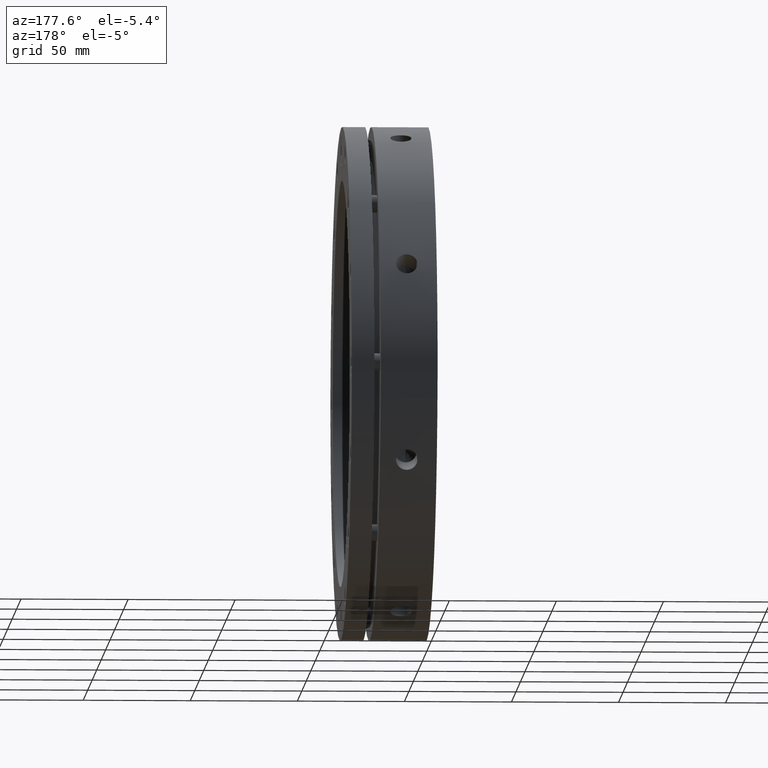
[diagram: clean part render]
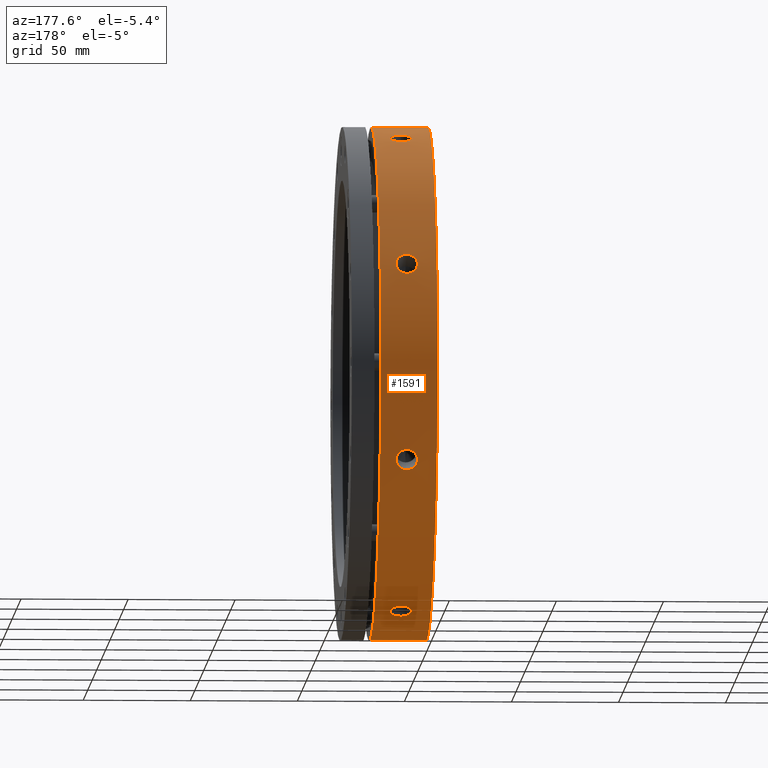
[diagram: same view with one face highlighted and labeled with its STEP entity id]
A machine part, auxiliary view. The second image highlights one B-rep face of the part: STEP entity #1591.
In plain terms, the highlighted cylindrical surface (partial cylindrical patch) has radius 120 mm, axis along (1, 0, 0).
Its self-contained STEP definition (entity closure, byte-faithful):
#111 = EDGE_CURVE ( 'NONE', #2242, #2240, #253, .T. ) ;
#112 = EDGE_CURVE ( 'NONE', #2250, #2245, #249, .T. ) ;
#113 = EDGE_CURVE ( 'NONE', #2240, #2242, #244, .T. ) ;
#114 = EDGE_CURVE ( 'NONE', #2241, #2243, #3080, .T. ) ;
#115 = EDGE_CURVE ( 'NONE', #2254, #2255, #257, .T. ) ;
#116 = EDGE_CURVE ( 'NONE', #2257, #2248, #255, .T. ) ;
#117 = EDGE_CURVE ( 'NONE', #2248, #2257, #247, .T. ) ;
#118 = EDGE_CURVE ( 'NONE', #2245, #2250, #260, .T. ) ;
#119 = EDGE_CURVE ( 'NONE', #2255, #2254, #261, .T. ) ;
#120 = EDGE_CURVE ( 'NONE', #2243, #2244, #3081, .T. ) ;
#121 = EDGE_CURVE ( 'NONE', #2244, #2249, #3078, .T. ) ;
#122 = EDGE_CURVE ( 'NONE', #2241, #2249, #3083, .T. ) ;
#244 = B_SPLINE_CURVE_WITH_KNOTS ( 'NONE', 3,
 ( #928, #853, #929, #930, #931, #932, #933, #934, #935, #936, #937, #938, #939, #940, #941, #942, #943, #944, #945, #946, #947, #948, #949, #950, #951, #952, #953, #954, #955, #956, #957, #958, #959, #960, #961, #962, #963, #964 ),
 .UNSPECIFIED., .F., .F.,
 ( 4, 2, 2, 2, 2, 2, 2, 2, 2, 2, 2, 2, 2, 2, 2, 2, 2, 2, 4 ),
 ( 0.02344949051190831100, 0.02442641090428118700, 0.02540333129665406700, 0.02638025168902694700, 0.02735717208139982300, 0.02833409247377270000, 0.02882255266995913500, 0.02931101286614556600, 0.03028793325851844900, 0.03126485365089133600, 0.03224177404326421900, 0.03273023423945065800, 0.03321869443563709600, 0.03419561482800996500, 0.03517253522038282800, 0.03614945561275569700, 0.03712637600512856000, 0.03810329639750142900, 0.03908021678987429200 ),
 .UNSPECIFIED. ) ;
#247 = B_SPLINE_CURVE_WITH_KNOTS ( 'NONE', 3,
 ( #1045, #927, #1047, #1048, #1049, #1050, #1051, #1052, #1053, #1054, #1055, #1056, #1057, #1058, #1059, #1060, #1061, #1062, #1063, #1064, #1065, #1066, #1067, #1068, #1069, #1070, #1071, #1072, #1073, #1074, #1075, #1076, #1077, #1078, #1079, #1080, #1081, #1082 ),
 .UNSPECIFIED., .F., .F.,
 ( 4, 2, 2, 2, 2, 2, 2, 2, 2, 2, 2, 2, 2, 2, 2, 2, 2, 2, 4 ),
 ( 0.02344949051190828300, 0.02442641090428112800, 0.02540333129665397300, 0.02638025168902682200, 0.02735717208139966700, 0.02833409247377251200, 0.02882255266995894400, 0.02931101286614537200, 0.03028793325851824800, 0.03126485365089112800, 0.03224177404326400400, 0.03273023423945044300, 0.03321869443563688100, 0.03419561482800977100, 0.03517253522038266100, 0.03614945561275555900, 0.03712637600512844900, 0.03810329639750134600, 0.03908021678987423600 ),
 .UNSPECIFIED. ) ;
#249 = B_SPLINE_CURVE_WITH_KNOTS ( 'NONE', 3,
 ( #891, #890, #843, #892, #893, #894, #895, #896, #897, #898, #899, #900, #901, #902, #903, #904, #905, #906, #907, #908, #909, #910, #911, #912, #913, #914, #915, #916, #917, #918, #919, #920, #921, #922, #923, #924, #925, #926 ),
 .UNSPECIFIED., .F., .F.,
 ( 4, 2, 2, 2, 2, 2, 2, 2, 2, 2, 2, 2, 2, 2, 2, 2, 2, 2, 4 ),
 ( 0.02344949051190825900, 0.02442641090428108700, 0.02540333129665391100, 0.02638025168902673900, 0.02735717208139956300, 0.02833409247377239100, 0.02882255266995881900, 0.02931101286614524300, 0.03028793325851812700, 0.03126485365089101700, 0.03224177404326390000, 0.03273023423945035900, 0.03321869443563681800, 0.03419561482800972200, 0.03517253522038262000, 0.03614945561275552400, 0.03712637600512842100, 0.03810329639750132500, 0.03908021678987422300 ),
 .UNSPECIFIED. ) ;
#253 = B_SPLINE_CURVE_WITH_KNOTS ( 'NONE', 3,
 ( #854, #851, #847, #855, #856, #857, #858, #859, #860, #861, #862, #863, #864, #865, #866, #867, #868, #869, #870, #871, #872, #873, #874, #875, #876, #877, #878, #879, #880, #881, #882, #883, #884, #885, #886, #887, #888, #889 ),
 .UNSPECIFIED., .F., .F.,
 ( 4, 2, 2, 2, 2, 2, 2, 2, 2, 2, 2, 2, 2, 2, 2, 2, 2, 2, 4 ),
 ( 0.007818764230698502600, 0.008795684623274121300, 0.009772605015849740100, 0.01074952540842535900, 0.01172644580100097900, 0.01270336619357659800, 0.01319182638986441200, 0.01368028658615222900, 0.01465720697872783700, 0.01563412737130344700, 0.01661104776387905800, 0.01709950796016685600, 0.01758796815645465400, 0.01856488854903026000, 0.01954180894160587000, 0.02051872933418148400, 0.02149564972675709400, 0.02247257011933270400, 0.02344949051190831100 ),
 .UNSPECIFIED. ) ;
#255 = B_SPLINE_CURVE_WITH_KNOTS ( 'NONE', 3,
 ( #1008, #1007, #967, #1009, #1010, #1011, #1012, #1013, #1014, #1015, #1016, #1017, #1018, #1019, #1020, #1021, #1022, #1023, #1024, #1025, #1026, #1027, #1028, #1029, #1030, #1031, #1032, #1033, #1034, #1035, #1036, #1037, #1038, #1039, #1040, #1041, #1042, #1043 ),
 .UNSPECIFIED., .F., .F.,
 ( 4, 2, 2, 2, 2, 2, 2, 2, 2, 2, 2, 2, 2, 2, 2, 2, 2, 2, 4 ),
 ( 0.007818764230698497400, 0.008795684623274104000, 0.009772605015849710600, 0.01074952540842531700, 0.01172644580100092400, 0.01270336619357653000, 0.01319182638986432900, 0.01368028658615212700, 0.01465720697872771600, 0.01563412737130330500, 0.01661104776387889800, 0.01709950796016670300, 0.01758796815645450800, 0.01856488854903013500, 0.01954180894160576600, 0.02051872933418139400, 0.02149564972675702100, 0.02247257011933265200, 0.02344949051190828300 ),
 .UNSPECIFIED. ) ;
#257 = B_SPLINE_CURVE_WITH_KNOTS ( 'NONE', 3,
 ( #971, #966, #965, #972, #973, #974, #975, #976, #977, #978, #979, #980, #981, #982, #983, #984, #985, #986, #987, #988, #989, #990, #991, #992, #993, #994, #995, #996, #997, #998, #999, #1000, #1001, #1002, #1003, #1004, #1005, #1006 ),
 .UNSPECIFIED., .F., .F.,
 ( 4, 2, 2, 2, 2, 2, 2, 2, 2, 2, 2, 2, 2, 2, 2, 2, 2, 2, 4 ),
 ( 0.007818764230698502600, 0.008795684623274104000, 0.009772605015849703700, 0.01074952540842530500, 0.01172644580100090600, 0.01270336619357650600, 0.01319182638986431500, 0.01368028658615212300, 0.01465720697872772300, 0.01563412737130332600, 0.01661104776387892200, 0.01709950796016672400, 0.01758796815645452500, 0.01856488854903015600, 0.01954180894160578000, 0.02051872933418141100, 0.02149564972675703900, 0.02247257011933266900, 0.02344949051190829700 ),
 .UNSPECIFIED. ) ;
#260 = B_SPLINE_CURVE_WITH_KNOTS ( 'NONE', 3,
 ( #1044, #1046, #1085, #1086, #1087, #1088, #1089, #1090, #1091, #1092, #1093, #1094, #1095, #1096, #1097, #1098, #1099, #1100, #1101, #1102, #1103, #1104, #1105, #1106, #1107, #1108, #1109, #1110, #1111, #1112, #1113, #1114, #1115, #1116, #1117, #1118, #1119, #1120 ),
 .UNSPECIFIED., .F., .F.,
 ( 4, 2, 2, 2, 2, 2, 2, 2, 2, 2, 2, 2, 2, 2, 2, 2, 2, 2, 4 ),
 ( 0.007818764230698476600, 0.008795684623274083200, 0.009772605015849689800, 0.01074952540842529600, 0.01172644580100090300, 0.01270336619357650800, 0.01319182638986431100, 0.01368028658615211600, 0.01465720697872772300, 0.01563412737130333300, 0.01661104776387894000, 0.01709950796016674500, 0.01758796815645454600, 0.01856488854903016700, 0.01954180894160578700, 0.02051872933418140400, 0.02149564972675702100, 0.02247257011933264200, 0.02344949051190825900 ),
 .UNSPECIFIED. ) ;
#261 = B_SPLINE_CURVE_WITH_KNOTS ( 'NONE', 3,
 ( #1084, #1083, #1123, #1124, #1125, #1126, #1127, #1128, #1129, #1130, #1131, #1132, #1133, #1134, #1135, #1136, #1137, #1138, #1139, #1140, #1141, #1142, #1143, #1144, #1145, #1146, #1147, #1148, #1149, #1150, #1151, #1152, #1153, #1154, #1155, #1156, #1157, #1158 ),
 .UNSPECIFIED., .F., .F.,
 ( 4, 2, 2, 2, 2, 2, 2, 2, 2, 2, 2, 2, 2, 2, 2, 2, 2, 2, 4 ),
 ( 0.02344949051190830000, 0.02442641090428121500, 0.02540333129665412600, 0.02638025168902704100, 0.02735717208139995500, 0.02833409247377286600, 0.02882255266995930800, 0.02931101286614575000, 0.03028793325851864000, 0.03126485365089153000, 0.03224177404326441400, 0.03273023423945084500, 0.03321869443563726900, 0.03419561482801010400, 0.03517253522038293900, 0.03614945561275577400, 0.03712637600512860800, 0.03810329639750143600, 0.03908021678987427100 ),
 .UNSPECIFIED. ) ;
#273 = EDGE_LOOP ( 'NONE', ( #431, #432 ) ) ;
#278 = EDGE_LOOP ( 'NONE', ( #435, #436, #437, #438 ) ) ;
#287 = EDGE_LOOP ( 'NONE', ( #427, #428 ) ) ;
#300 = EDGE_LOOP ( 'NONE', ( #433, #434 ) ) ;
#304 = EDGE_LOOP ( 'NONE', ( #429, #430 ) ) ;
#427 = ORIENTED_EDGE ( 'NONE', *, *, #112, .T. ) ;
#428 = ORIENTED_EDGE ( 'NONE', *, *, #118, .T. ) ;
#429 = ORIENTED_EDGE ( 'NONE', *, *, #113, .T. ) ;
#430 = ORIENTED_EDGE ( 'NONE', *, *, #111, .T. ) ;
#431 = ORIENTED_EDGE ( 'NONE', *, *, #119, .T. ) ;
#432 = ORIENTED_EDGE ( 'NONE', *, *, #115, .T. ) ;
#433 = ORIENTED_EDGE ( 'NONE', *, *, #117, .T. ) ;
#434 = ORIENTED_EDGE ( 'NONE', *, *, #116, .T. ) ;
#435 = ORIENTED_EDGE ( 'NONE', *, *, #114, .T. ) ;
#436 = ORIENTED_EDGE ( 'NONE', *, *, #120, .T. ) ;
#437 = ORIENTED_EDGE ( 'NONE', *, *, #121, .T. ) ;
#438 = ORIENTED_EDGE ( 'NONE', *, *, #122, .F. ) ;
#843 = CARTESIAN_POINT ( 'NONE',  ( 13.34269600044797200, 41.29340222208358600, 112.6714650066890600 ) ) ;
#847 = CARTESIAN_POINT ( 'NONE',  ( 14.65730431387915900, 112.6714649958652800, 41.29340225170988500 ) ) ;
#851 = CARTESIAN_POINT ( 'NONE',  ( 14.32609565464447200, 112.6826818058516200, 41.26273404709378700 ) ) ;
#853 = CARTESIAN_POINT ( 'NONE',  ( 13.67390450084658800, 108.8558474822007300, 50.50152937220665500 ) ) ;
#854 = CARTESIAN_POINT ( 'NONE',  ( 13.99999999999997300, 112.6826818058516300, 41.26273404709378700 ) ) ;
#855 = CARTESIAN_POINT ( 'NONE',  ( 15.29844171405469100, 112.6273662857551000, 41.41352988300263100 ) ) ;
#856 = CARTESIAN_POINT ( 'NONE',  ( 15.61006213290475800, 112.5947301807598400, 41.50231869707901900 ) ) ;
#857 = CARTESIAN_POINT ( 'NONE',  ( 16.21530377150665500, 112.5077540810513500, 41.73752500268434300 ) ) ;
#858 = CARTESIAN_POINT ( 'NONE',  ( 16.50798178566858400, 112.4532019499944800, 41.88448622191803100 ) ) ;
#859 = CARTESIAN_POINT ( 'NONE',  ( 17.04960693359607400, 112.3262343275274300, 42.22380722622813200 ) ) ;
#860 = CARTESIAN_POINT ( 'NONE',  ( 17.30205413072294400, 112.2533898219299700, 42.41734279239878400 ) ) ;
#861 = CARTESIAN_POINT ( 'NONE',  ( 17.76877133817776100, 112.0875062743902100, 42.85376801718348400 ) ) ;
#862 = CARTESIAN_POINT ( 'NONE',  ( 17.97587599210442000, 111.9969576133062900, 43.09007808720873800 ) ) ;
#863 = CARTESIAN_POINT ( 'NONE',  ( 18.24734321810848000, 111.8502312926801200, 43.46888652615312100 ) ) ;
#864 = CARTESIAN_POINT ( 'NONE',  ( 18.33133848670364700, 111.7994623559722100, 43.59932492883895300 ) ) ;
#865 = CARTESIAN_POINT ( 'NONE',  ( 18.48606234264885000, 111.6940427992380600, 43.86868724382902200 ) ) ;
#866 = CARTESIAN_POINT ( 'NONE',  ( 18.55697540477384100, 111.6391573895304500, 44.00819792984384500 ) ) ;
#867 = CARTESIAN_POINT ( 'NONE',  ( 18.74511210979243700, 111.4719594923816300, 44.43077804445380300 ) ) ;
#868 = CARTESIAN_POINT ( 'NONE',  ( 18.83958430933453000, 111.3562191250939700, 44.72018636680705600 ) ) ;
#869 = CARTESIAN_POINT ( 'NONE',  ( 18.96733172664240600, 111.1158858628532200, 45.31404324744465100 ) ) ;
#870 = CARTESIAN_POINT ( 'NONE',  ( 19.00022695098485300, 110.9906284014734600, 45.62005589765411200 ) ) ;
#871 = CARTESIAN_POINT ( 'NONE',  ( 18.99977066345735500, 110.7378159902724900, 46.23034936882483900 ) ) ;
#872 = CARTESIAN_POINT ( 'NONE',  ( 18.96713995119309700, 110.6122652328777900, 46.52987047539462400 ) ) ;
#873 = CARTESIAN_POINT ( 'NONE',  ( 18.87156380455883200, 110.4252744694038600, 46.97110042311333400 ) ) ;
#874 = CARTESIAN_POINT ( 'NONE',  ( 18.83187565630523600, 110.3631703696181700, 47.11682596673490100 ) ) ;
#875 = CARTESIAN_POINT ( 'NONE',  ( 18.73648068222775000, 110.2394679704708700, 47.40553095157228100 ) ) ;
#876 = CARTESIAN_POINT ( 'NONE',  ( 18.68051533151468700, 110.1777101082807800, 47.54887059754470600 ) ) ;
#877 = CARTESIAN_POINT ( 'NONE',  ( 18.49201824443033000, 109.9972992757437700, 47.96546415149243400 ) ) ;
#878 = CARTESIAN_POINT ( 'NONE',  ( 18.33827494710486100, 109.8821580562655700, 48.22846832357040400 ) ) ;
#879 = CARTESIAN_POINT ( 'NONE',  ( 17.97511089488577300, 109.6626453880218400, 48.72553768241802200 ) ) ;
#880 = CARTESIAN_POINT ( 'NONE',  ( 17.76380750032339200, 109.5578701330107000, 48.96045581914162900 ) ) ;
#881 = CARTESIAN_POINT ( 'NONE',  ( 17.30231119133021500, 109.3689514753463400, 49.38102464796666900 ) ) ;
#882 = CARTESIAN_POINT ( 'NONE',  ( 17.05051108416195400, 109.2835694002731500, 49.56949505848490400 ) ) ;
#883 = CARTESIAN_POINT ( 'NONE',  ( 16.50376024876696600, 109.1321196117432100, 49.90204254602867500 ) ) ;
#884 = CARTESIAN_POINT ( 'NONE',  ( 16.21276316240980000, 109.0674184154071200, 50.04311905064766800 ) ) ;
#885 = CARTESIAN_POINT ( 'NONE',  ( 15.61105113690859400, 108.9632639721163200, 50.26949998420192100 ) ) ;
#886 = CARTESIAN_POINT ( 'NONE',  ( 15.29589417049166900, 108.9230157433184600, 50.35653630393775200 ) ) ;
#887 = CARTESIAN_POINT ( 'NONE',  ( 14.65051137473856700, 108.8691669336712900, 50.47285011090031800 ) ) ;
#888 = CARTESIAN_POINT ( 'NONE',  ( 14.32609549922103300, 108.8558474822007400, 50.50152937220665500 ) ) ;
#889 = CARTESIAN_POINT ( 'NONE',  ( 13.99999999999997300, 108.8558474822007300, 50.50152937220664700 ) ) ;
#890 = CARTESIAN_POINT ( 'NONE',  ( 13.67390450084658600, 41.26273404709379400, 112.6826818058516200 ) ) ;
#891 = CARTESIAN_POINT ( 'NONE',  ( 13.99999999999997300, 41.26273404709379400, 112.6826818058516300 ) ) ;
#892 = CARTESIAN_POINT ( 'NONE',  ( 12.70155888875236100, 41.41352974078882500, 112.6273663380136600 ) ) ;
#893 = CARTESIAN_POINT ( 'NONE',  ( 12.38993860591399000, 41.50231847217801100, 112.5947302635255800 ) ) ;
#894 = CARTESIAN_POINT ( 'NONE',  ( 11.78469722124674700, 41.73752455466963300, 112.5077542471207300 ) ) ;
#895 = CARTESIAN_POINT ( 'NONE',  ( 11.49201930043951800, 41.88448564370444400, 112.4532021650982900 ) ) ;
#896 = CARTESIAN_POINT ( 'NONE',  ( 10.95039430464788100, 42.22380634826623700, 112.3262346572975300 ) ) ;
#897 = CARTESIAN_POINT ( 'NONE',  ( 10.69794716680119300, 42.41734174291347200, 112.2533902180554400 ) ) ;
#898 = CARTESIAN_POINT ( 'NONE',  ( 10.23123003481707400, 42.85376656947902100, 112.0875068274369700 ) ) ;
#899 = CARTESIAN_POINT ( 'NONE',  ( 10.02412534019171500, 43.09007648107846900, 111.9969582307311000 ) ) ;
#900 = CARTESIAN_POINT ( 'NONE',  ( 9.752658057386321700, 43.46888461982908300, 111.8502320334129500 ) ) ;
#901 = CARTESIAN_POINT ( 'NONE',  ( 9.668662763477108500, 43.59932291843123400, 111.7994631398342700 ) ) ;
#902 = CARTESIAN_POINT ( 'NONE',  ( 9.513938841794720600, 43.86868501574580400, 111.6940436741820500 ) ) ;
#903 = CARTESIAN_POINT ( 'NONE',  ( 9.443025731236053500, 44.00819560125948700, 111.6391583073270900 ) ) ;
#904 = CARTESIAN_POINT ( 'NONE',  ( 9.254888847699589900, 44.43077544771394100, 111.4719605268672400 ) ) ;
#905 = CARTESIAN_POINT ( 'NONE',  ( 9.160416506036181500, 44.72018358585437200, 111.3562202413060800 ) ) ;
#906 = CARTESIAN_POINT ( 'NONE',  ( 9.032668737169784000, 45.31404008189480200, 111.1158871531844000 ) ) ;
#907 = CARTESIAN_POINT ( 'NONE',  ( 8.999773295741727400, 45.62005221999550000, 110.9906299136822600 ) ) ;
#908 = CARTESIAN_POINT ( 'NONE',  ( 9.000229084601675900, 46.23034606845782700, 110.7378173686917500 ) ) ;
#909 = CARTESIAN_POINT ( 'NONE',  ( 9.032859590381439900, 46.52986735622857900, 110.6122665455206100 ) ) ;
#910 = CARTESIAN_POINT ( 'NONE',  ( 9.128435468449582800, 46.97109756834532800, 110.4252756838594700 ) ) ;
#911 = CARTESIAN_POINT ( 'NONE',  ( 9.168123534204912800, 47.11682319883920700, 110.3631715514332700 ) ) ;
#912 = CARTESIAN_POINT ( 'NONE',  ( 9.263518354819256100, 47.40552835531102700, 110.2394690870541500 ) ) ;
#913 = CARTESIAN_POINT ( 'NONE',  ( 9.319483641961976900, 47.54886810725793800, 110.1777111831626300 ) ) ;
#914 = CARTESIAN_POINT ( 'NONE',  ( 9.507980575737303000, 47.96546198714089100, 109.9973002201753900 ) ) ;
#915 = CARTESIAN_POINT ( 'NONE',  ( 9.661723802678416500, 48.22846635950260500, 109.8821589188194700 ) ) ;
#916 = CARTESIAN_POINT ( 'NONE',  ( 10.02488776009687200, 48.72553609433924000, 109.6626460941446600 ) ) ;
#917 = CARTESIAN_POINT ( 'NONE',  ( 10.23619115158910900, 48.96045443282596900, 109.5578707529653600 ) ) ;
#918 = CARTESIAN_POINT ( 'NONE',  ( 10.69768751840985900, 49.38102362991412500, 109.3689519354288700 ) ) ;
#919 = CARTESIAN_POINT ( 'NONE',  ( 10.94948767571860900, 49.56949420226752800, 109.2835697889036800 ) ) ;
#920 = CARTESIAN_POINT ( 'NONE',  ( 11.49623864704538100, 49.90204197637969200, 109.1321198724850900 ) ) ;
#921 = CARTESIAN_POINT ( 'NONE',  ( 11.78723585736000200, 50.04311862208278700, 109.0674186121762800 ) ) ;
#922 = CARTESIAN_POINT ( 'NONE',  ( 12.38894812334508300, 50.26949976566331900, 108.9632640730696700 ) ) ;
#923 = CARTESIAN_POINT ( 'NONE',  ( 12.70410521623136400, 50.35653616474557000, 108.9230158077052000 ) ) ;
#924 = CARTESIAN_POINT ( 'NONE',  ( 13.34948831613424500, 50.47285008385264900, 108.8691669462472500 ) ) ;
#925 = CARTESIAN_POINT ( 'NONE',  ( 13.67390434542315000, 50.50152937220665500, 108.8558474822007300 ) ) ;
#926 = CARTESIAN_POINT ( 'NONE',  ( 13.99999999999997300, 50.50152937220665500, 108.8558474822007300 ) ) ;
#927 = CARTESIAN_POINT ( 'NONE',  ( 13.67390450084658900, 50.50152937220666200, -108.8558474822007700 ) ) ;
#928 = CARTESIAN_POINT ( 'NONE',  ( 13.99999999999997300, 108.8558474822007300, 50.50152937220664700 ) ) ;
#929 = CARTESIAN_POINT ( 'NONE',  ( 13.34269600044797200, 108.8696016819515400, 50.47191222295369100 ) ) ;
#930 = CARTESIAN_POINT ( 'NONE',  ( 12.70155888875236600, 108.9233621973734600, 50.35578677220844000 ) ) ;
#931 = CARTESIAN_POINT ( 'NONE',  ( 12.38993860591399400, 108.9630681218498900, 50.26992646856835700 ) ) ;
#932 = CARTESIAN_POINT ( 'NONE',  ( 11.78469722124675400, 109.0678826067556000, 50.04210932166175500 ) ) ;
#933 = CARTESIAN_POINT ( 'NONE',  ( 11.49201930043953000, 109.1332256422567200, 49.89961799190874800 ) ) ;
#934 = CARTESIAN_POINT ( 'NONE',  ( 10.95039430464789400, 109.2833820276930500, 49.56990243495983600 ) ) ;
#935 = CARTESIAN_POINT ( 'NONE',  ( 10.69794716680119800, 109.3687234206879600, 49.38154344804536300 ) ) ;
#936 = CARTESIAN_POINT ( 'NONE',  ( 10.23123003481708800, 109.5600251046381300, 48.95564722331020100 ) ) ;
#937 = CARTESIAN_POINT ( 'NONE',  ( 10.02412534019172300, 109.6630939188340200, 48.72452335559895400 ) ) ;
#938 = CARTESIAN_POINT ( 'NONE',  ( 9.752658057386332400, 109.8272006334118300, 48.35291446281834700 ) ) ;
#939 = CARTESIAN_POINT ( 'NONE',  ( 9.668662763477113800, 109.8835354099570300, 48.22478162842753600 ) ) ;
#940 = CARTESIAN_POINT ( 'NONE',  ( 9.513938841794722400, 109.9994603565310600, 47.95977104379001300 ) ) ;
#941 = CARTESIAN_POINT ( 'NONE',  ( 9.443025731236062400, 110.0592994225040700, 47.82231234763497700 ) ) ;
#942 = CARTESIAN_POINT ( 'NONE',  ( 9.254888847699593400, 110.2398818131622600, 47.40527658825175200 ) ) ;
#943 = CARTESIAN_POINT ( 'NONE',  ( 9.160416506036186800, 110.3626835293951700, 47.11879339046527100 ) ) ;
#944 = CARTESIAN_POINT ( 'NONE',  ( 9.032668737169785800, 110.6126623284427200, 46.52893227870909200 ) ) ;
#945 = CARTESIAN_POINT ( 'NONE',  ( 8.999773295741725600, 110.7404753429744200, 46.22397877728799600 ) ) ;
#946 = CARTESIAN_POINT ( 'NONE',  ( 9.000229084601672400, 110.9932527968066700, 45.61367039359203100 ) ) ;
#947 = CARTESIAN_POINT ( 'NONE',  ( 9.032859590381436400, 111.1162684920513200, 45.31309902145175500 ) ) ;
#948 = CARTESIAN_POINT ( 'NONE',  ( 9.128435468449582800, 111.2960428608029600, 44.86887964009912400 ) ) ;
#949 = CARTESIAN_POINT ( 'NONE',  ( 9.168123534204907400, 111.3551721891395800, 44.72192180540597000 ) ) ;
#950 = CARTESIAN_POINT ( 'NONE',  ( 9.263518354819254300, 111.4718467116323800, 44.43030558008923900 ) ) ;
#951 = CARTESIAN_POINT ( 'NONE',  ( 9.319483641961980400, 111.5295337896140800, 44.28527963684039300 ) ) ;
#952 = CARTESIAN_POINT ( 'NONE',  ( 9.507980575737304800, 111.6965403317514600, 43.86313346404567400 ) ) ;
#953 = CARTESIAN_POINT ( 'NONE',  ( 9.661723802678416500, 111.8010953119467200, 43.59574409388358900 ) ) ;
#954 = CARTESIAN_POINT ( 'NONE',  ( 10.02488776009686500, 111.9973576852872700, 43.08904370677301200 ) ) ;
#955 = CARTESIAN_POINT ( 'NONE',  ( 10.23619115158910200, 112.0893826812073000, 42.84884400235493700 ) ) ;
#956 = CARTESIAN_POINT ( 'NONE',  ( 10.69768751840985200, 112.2531842354527500, 42.41787089416195000 ) ) ;
#957 = CARTESIAN_POINT ( 'NONE',  ( 10.94948767571860800, 112.3260787604177000, 42.22422777959650400 ) ) ;
#958 = CARTESIAN_POINT ( 'NONE',  ( 11.49623864704537400, 112.4541342836511600, 41.88198973054358700 ) ) ;
#959 = CARTESIAN_POINT ( 'NONE',  ( 11.78723585735999900, 112.5081398365792500, 41.73648277778421800 ) ) ;
#960 = CARTESIAN_POINT ( 'NONE',  ( 12.38894812334508400, 112.5945670974441700, 41.50275875513203500 ) ) ;
#961 = CARTESIAN_POINT ( 'NONE',  ( 12.70410521623136700, 112.6276513040750600, 41.41275490576065000 ) ) ;
#962 = CARTESIAN_POINT ( 'NONE',  ( 13.34948831613424700, 112.6718207699259900, 41.29243164971757800 ) ) ;
#963 = CARTESIAN_POINT ( 'NONE',  ( 13.67390434542314500, 112.6826818058516300, 41.26273404709379400 ) ) ;
#964 = CARTESIAN_POINT ( 'NONE',  ( 13.99999999999997300, 112.6826818058516300, 41.26273404709378700 ) ) ;
#965 = CARTESIAN_POINT ( 'NONE',  ( 14.65730431387915700, 108.8696016952469400, -50.47191219435112700 ) ) ;
#966 = CARTESIAN_POINT ( 'NONE',  ( 14.32609565464447200, 108.8558474822007600, -50.50152937220664700 ) ) ;
#967 = CARTESIAN_POINT ( 'NONE',  ( 14.65730431387915000, 41.29340225170989200, -112.6714649958652600 ) ) ;
#968 = CARTESIAN_POINT ( 'NONE',  ( -3.469446951953614200E-014, 0.0000000000000000000, 0.0000000000000000000 ) ) ;
#969 = DIRECTION ( 'NONE',  ( 1.000000000000000000, 0.0000000000000000000, 0.0000000000000000000 ) ) ;
#970 = DIRECTION ( 'NONE',  ( 0.0000000000000000000, 0.0000000000000000000, -1.000000000000000000 ) ) ;
#971 = CARTESIAN_POINT ( 'NONE',  ( 13.99999999999997300, 108.8558474822007400, -50.50152937220664700 ) ) ;
#972 = CARTESIAN_POINT ( 'NONE',  ( 15.29844171405469000, 108.9233622609814600, -50.35578663469570400 ) ) ;
#973 = CARTESIAN_POINT ( 'NONE',  ( 15.61006213290476000, 108.9630682223546900, -50.26992625101510000 ) ) ;
#974 = CARTESIAN_POINT ( 'NONE',  ( 16.21530377150665500, 109.0678828061210300, -50.04210888743872900 ) ) ;
#975 = CARTESIAN_POINT ( 'NONE',  ( 16.50798178566859100, 109.1332258990141400, -49.89961743094863100 ) ) ;
#976 = CARTESIAN_POINT ( 'NONE',  ( 17.04960693359608500, 109.2833824153232900, -49.56990158096436300 ) ) ;
#977 = CARTESIAN_POINT ( 'NONE',  ( 17.30205413072295800, 109.3687238826831800, -49.38154242584418100 ) ) ;
#978 = CARTESIAN_POINT ( 'NONE',  ( 17.76877133817776100, 109.5600257372566500, -48.95564580856539300 ) ) ;
#979 = CARTESIAN_POINT ( 'NONE',  ( 17.97587599210441700, 109.6630946179543900, -48.72452178330807700 ) ) ;
#980 = CARTESIAN_POINT ( 'NONE',  ( 18.24734321810848300, 109.8272014576093100, -48.35291259106649900 ) ) ;
#981 = CARTESIAN_POINT ( 'NONE',  ( 18.33133848670363300, 109.8835362772557600, -48.22477965258036600 ) ) ;
#982 = CARTESIAN_POINT ( 'NONE',  ( 18.48606234264884300, 109.9994613133450100, -47.95976884961842800 ) ) ;
#983 = CARTESIAN_POINT ( 'NONE',  ( 18.55697540477383000, 110.0593004200816300, -47.82231005209694500 ) ) ;
#984 = CARTESIAN_POINT ( 'NONE',  ( 18.74511210979244400, 110.2398829178428900, -47.40527402058759800 ) ) ;
#985 = CARTESIAN_POINT ( 'NONE',  ( 18.83958430933453700, 110.3626847065445600, -47.11879063475361600 ) ) ;
#986 = CARTESIAN_POINT ( 'NONE',  ( 18.96733172664240600, 110.6126636544225800, -46.52892912792537300 ) ) ;
#987 = CARTESIAN_POINT ( 'NONE',  ( 19.00022695098485300, 110.7404768741787000, -46.22397510749756600 ) ) ;
#988 = CARTESIAN_POINT ( 'NONE',  ( 18.99977066345736200, 110.9932541558290500, -45.61366708519052800 ) ) ;
#989 = CARTESIAN_POINT ( 'NONE',  ( 18.96713995119309700, 111.1162697694561200, -45.31309588768961300 ) ) ;
#990 = CARTESIAN_POINT ( 'NONE',  ( 18.87156380455883600, 111.2960440206789800, -44.86887676272346000 ) ) ;
#991 = CARTESIAN_POINT ( 'NONE',  ( 18.83187565630524000, 111.3551733106679500, -44.72191901253863500 ) ) ;
#992 = CARTESIAN_POINT ( 'NONE',  ( 18.73648068222774700, 111.4718477579227000, -44.43030295471164900 ) ) ;
#993 = CARTESIAN_POINT ( 'NONE',  ( 18.68051533151469800, 111.5295347904564900, -44.28527711588544900 ) ) ;
#994 = CARTESIAN_POINT ( 'NONE',  ( 18.49201824443034100, 111.6965411943650700, -43.86313126580397900 ) ) ;
#995 = CARTESIAN_POINT ( 'NONE',  ( 18.33827494710486800, 111.8010960908346200, -43.59574209516016200 ) ) ;
#996 = CARTESIAN_POINT ( 'NONE',  ( 17.97511089488577700, 111.9973583089242900, -43.08904208452748500 ) ) ;
#997 = CARTESIAN_POINT ( 'NONE',  ( 17.76380750032339200, 112.0893832231063700, -42.84884258370759400 ) ) ;
#998 = CARTESIAN_POINT ( 'NONE',  ( 17.30231119133023300, 112.2531846299971500, -42.41786984896256700 ) ) ;
#999 = CARTESIAN_POINT ( 'NONE',  ( 17.05051108416196100, 112.3260790910516000, -42.22422689935611100 ) ) ;
#1000 = CARTESIAN_POINT ( 'NONE',  ( 16.50376024876696200, 112.4541345020814900, -41.88198914336855700 ) ) ;
#1001 = CARTESIAN_POINT ( 'NONE',  ( 16.21276316240980000, 112.5081400004835500, -41.73648233560624700 ) ) ;
#1002 = CARTESIAN_POINT ( 'NONE',  ( 15.61105113690860300, 112.5945671805895200, -41.50275852921704700 ) ) ;
#1003 = CARTESIAN_POINT ( 'NONE',  ( 15.29589417049167300, 112.6276513569705300, -41.41275476180862800 ) ) ;
#1004 = CARTESIAN_POINT ( 'NONE',  ( 14.65051137473856700, 112.6718207801590200, -41.29243162169944300 ) ) ;
#1005 = CARTESIAN_POINT ( 'NONE',  ( 14.32609549922103700, 112.6826818058516700, -41.26273404709378000 ) ) ;
#1006 = CARTESIAN_POINT ( 'NONE',  ( 13.99999999999997300, 112.6826818058516400, -41.26273404709377200 ) ) ;
#1007 = CARTESIAN_POINT ( 'NONE',  ( 14.32609565464447100, 41.26273404709379400, -112.6826818058516400 ) ) ;
#1008 = CARTESIAN_POINT ( 'NONE',  ( 13.99999999999997300, 41.26273404709378700, -112.6826818058516300 ) ) ;
#1009 = CARTESIAN_POINT ( 'NONE',  ( 15.29844171405469000, 41.41352988300263900, -112.6273662857551300 ) ) ;
#1010 = CARTESIAN_POINT ( 'NONE',  ( 15.61006213290476200, 41.50231869707902600, -112.5947301807598700 ) ) ;
#1011 = CARTESIAN_POINT ( 'NONE',  ( 16.21530377150665500, 41.73752500268434300, -112.5077540810513700 ) ) ;
#1012 = CARTESIAN_POINT ( 'NONE',  ( 16.50798178566857600, 41.88448622191803100, -112.4532019499944800 ) ) ;
#1013 = CARTESIAN_POINT ( 'NONE',  ( 17.04960693359607400, 42.22380722622813200, -112.3262343275274600 ) ) ;
#1014 = CARTESIAN_POINT ( 'NONE',  ( 17.30205413072294700, 42.41734279239879200, -112.2533898219299900 ) ) ;
#1015 = CARTESIAN_POINT ( 'NONE',  ( 17.76877133817775300, 42.85376801718347700, -112.0875062743901900 ) ) ;
#1016 = CARTESIAN_POINT ( 'NONE',  ( 17.97587599210441700, 43.09007808720873800, -111.9969576133063100 ) ) ;
#1017 = CARTESIAN_POINT ( 'NONE',  ( 18.24734321810848000, 43.46888652615311300, -111.8502312926801600 ) ) ;
#1018 = CARTESIAN_POINT ( 'NONE',  ( 18.33133848670363300, 43.59932492883893200, -111.7994623559722000 ) ) ;
#1019 = CARTESIAN_POINT ( 'NONE',  ( 18.48606234264884000, 43.86868724382901500, -111.6940427992380900 ) ) ;
#1020 = CARTESIAN_POINT ( 'NONE',  ( 18.55697540477383700, 44.00819792984383100, -111.6391573895305200 ) ) ;
#1021 = CARTESIAN_POINT ( 'NONE',  ( 18.74511210979244100, 44.43077804445379500, -111.4719594923816900 ) ) ;
#1022 = CARTESIAN_POINT ( 'NONE',  ( 18.83958430933453000, 44.72018636680704900, -111.3562191250940100 ) ) ;
#1023 = CARTESIAN_POINT ( 'NONE',  ( 18.96733172664239900, 45.31404324744463700, -111.1158858628531900 ) ) ;
#1024 = CARTESIAN_POINT ( 'NONE',  ( 19.00022695098485000, 45.62005589765409800, -110.9906284014734900 ) ) ;
#1025 = CARTESIAN_POINT ( 'NONE',  ( 18.99977066345736500, 46.23034936882481100, -110.7378159902724900 ) ) ;
#1026 = CARTESIAN_POINT ( 'NONE',  ( 18.96713995119309700, 46.52987047539459600, -110.6122652328777900 ) ) ;
#1027 = CARTESIAN_POINT ( 'NONE',  ( 18.87156380455883600, 46.97110042311334200, -110.4252744694038700 ) ) ;
#1028 = CARTESIAN_POINT ( 'NONE',  ( 18.83187565630524300, 47.11682596673489300, -110.3631703696181900 ) ) ;
#1029 = CARTESIAN_POINT ( 'NONE',  ( 18.73648068222775700, 47.40553095157230200, -110.2394679704709300 ) ) ;
#1030 = CARTESIAN_POINT ( 'NONE',  ( 18.68051533151469800, 47.54887059754469900, -110.1777101082807900 ) ) ;
#1031 = CARTESIAN_POINT ( 'NONE',  ( 18.49201824443034100, 47.96546415149241900, -109.9972992757437600 ) ) ;
#1032 = CARTESIAN_POINT ( 'NONE',  ( 18.33827494710486800, 48.22846832357038200, -109.8821580562655800 ) ) ;
#1033 = CARTESIAN_POINT ( 'NONE',  ( 17.97511089488578400, 48.72553768241800000, -109.6626453880218400 ) ) ;
#1034 = CARTESIAN_POINT ( 'NONE',  ( 17.76380750032338800, 48.96045581914160700, -109.5578701330106700 ) ) ;
#1035 = CARTESIAN_POINT ( 'NONE',  ( 17.30231119133023300, 49.38102464796667600, -109.3689514753463100 ) ) ;
#1036 = CARTESIAN_POINT ( 'NONE',  ( 17.05051108416196800, 49.56949505848490400, -109.2835694002731700 ) ) ;
#1037 = CARTESIAN_POINT ( 'NONE',  ( 16.50376024876697700, 49.90204254602866700, -109.1321196117432100 ) ) ;
#1038 = CARTESIAN_POINT ( 'NONE',  ( 16.21276316240980400, 50.04311905064765400, -109.0674184154071000 ) ) ;
#1039 = CARTESIAN_POINT ( 'NONE',  ( 15.61105113690859800, 50.26949998420193600, -108.9632639721163400 ) ) ;
#1040 = CARTESIAN_POINT ( 'NONE',  ( 15.29589417049167100, 50.35653630393773700, -108.9230157433184300 ) ) ;
#1041 = CARTESIAN_POINT ( 'NONE',  ( 14.65051137473856700, 50.47285011090031000, -108.8691669336713200 ) ) ;
#1042 = CARTESIAN_POINT ( 'NONE',  ( 14.32609549922103700, 50.50152937220665500, -108.8558474822007400 ) ) ;
#1043 = CARTESIAN_POINT ( 'NONE',  ( 13.99999999999997300, 50.50152937220664700, -108.8558474822007300 ) ) ;
#1044 = CARTESIAN_POINT ( 'NONE',  ( 13.99999999999997300, 50.50152937220665500, 108.8558474822007300 ) ) ;
#1045 = CARTESIAN_POINT ( 'NONE',  ( 13.99999999999997300, 50.50152937220664700, -108.8558474822007300 ) ) ;
#1046 = CARTESIAN_POINT ( 'NONE',  ( 14.32609565464446900, 50.50152937220666200, 108.8558474822007400 ) ) ;
#1047 = CARTESIAN_POINT ( 'NONE',  ( 13.34269600044796200, 50.47191222295369100, -108.8696016819515500 ) ) ;
#1048 = CARTESIAN_POINT ( 'NONE',  ( 12.70155888875235700, 50.35578677220844000, -108.9233621973734500 ) ) ;
#1049 = CARTESIAN_POINT ( 'NONE',  ( 12.38993860591398600, 50.26992646856835700, -108.9630681218498900 ) ) ;
#1050 = CARTESIAN_POINT ( 'NONE',  ( 11.78469722124674500, 50.04210932166175500, -109.0678826067555600 ) ) ;
#1051 = CARTESIAN_POINT ( 'NONE',  ( 11.49201930043951800, 49.89961799190873400, -109.1332256422566900 ) ) ;
#1052 = CARTESIAN_POINT ( 'NONE',  ( 10.95039430464788000, 49.56990243495982200, -109.2833820276930800 ) ) ;
#1053 = CARTESIAN_POINT ( 'NONE',  ( 10.69794716680119300, 49.38154344804535600, -109.3687234206879900 ) ) ;
#1054 = CARTESIAN_POINT ( 'NONE',  ( 10.23123003481707400, 48.95564722331017300, -109.5600251046381100 ) ) ;
#1055 = CARTESIAN_POINT ( 'NONE',  ( 10.02412534019170900, 48.72452335559894000, -109.6630939188339900 ) ) ;
#1056 = CARTESIAN_POINT ( 'NONE',  ( 9.752658057386321700, 48.35291446281834000, -109.8272006334118600 ) ) ;
#1057 = CARTESIAN_POINT ( 'NONE',  ( 9.668662763477106700, 48.22478162842750700, -109.8835354099570500 ) ) ;
#1058 = CARTESIAN_POINT ( 'NONE',  ( 9.513938841794718800, 47.95977104379000600, -109.9994603565310500 ) ) ;
#1059 = CARTESIAN_POINT ( 'NONE',  ( 9.443025731236053500, 47.82231234763494900, -110.0592994225040400 ) ) ;
#1060 = CARTESIAN_POINT ( 'NONE',  ( 9.254888847699593400, 47.40527658825174500, -110.2398818131622600 ) ) ;
#1061 = CARTESIAN_POINT ( 'NONE',  ( 9.160416506036181500, 47.11879339046527100, -110.3626835293951800 ) ) ;
#1062 = CARTESIAN_POINT ( 'NONE',  ( 9.032668737169785800, 46.52893227870908500, -110.6126623284427200 ) ) ;
#1063 = CARTESIAN_POINT ( 'NONE',  ( 8.999773295741723800, 46.22397877728800400, -110.7404753429744200 ) ) ;
#1064 = CARTESIAN_POINT ( 'NONE',  ( 9.000229084601674100, 45.61367039359201000, -110.9932527968067100 ) ) ;
#1065 = CARTESIAN_POINT ( 'NONE',  ( 9.032859590381438200, 45.31309902145173400, -111.1162684920513200 ) ) ;
#1066 = CARTESIAN_POINT ( 'NONE',  ( 9.128435468449582800, 44.86887964009909500, -111.2960428608029100 ) ) ;
#1067 = CARTESIAN_POINT ( 'NONE',  ( 9.168123534204914500, 44.72192180540594800, -111.3551721891395700 ) ) ;
#1068 = CARTESIAN_POINT ( 'NONE',  ( 9.263518354819254300, 44.43030558008922500, -111.4718467116323800 ) ) ;
#1069 = CARTESIAN_POINT ( 'NONE',  ( 9.319483641961982200, 44.28527963684037900, -111.5295337896140900 ) ) ;
#1070 = CARTESIAN_POINT ( 'NONE',  ( 9.507980575737310100, 43.86313346404566700, -111.6965403317514400 ) ) ;
#1071 = CARTESIAN_POINT ( 'NONE',  ( 9.661723802678418200, 43.59574409388358900, -111.8010953119467200 ) ) ;
#1072 = CARTESIAN_POINT ( 'NONE',  ( 10.02488776009686000, 43.08904370677301200, -111.9973576852872600 ) ) ;
#1073 = CARTESIAN_POINT ( 'NONE',  ( 10.23619115158910200, 42.84884400235495100, -112.0893826812073000 ) ) ;
#1074 = CARTESIAN_POINT ( 'NONE',  ( 10.69768751840985400, 42.41787089416197200, -112.2531842354527800 ) ) ;
#1075 = CARTESIAN_POINT ( 'NONE',  ( 10.94948767571860600, 42.22422777959651100, -112.3260787604177400 ) ) ;
#1076 = CARTESIAN_POINT ( 'NONE',  ( 11.49623864704537500, 41.88198973054360200, -112.4541342836512100 ) ) ;
#1077 = CARTESIAN_POINT ( 'NONE',  ( 11.78723585735999400, 41.73648277778421800, -112.5081398365792500 ) ) ;
#1078 = CARTESIAN_POINT ( 'NONE',  ( 12.38894812334507700, 41.50275875513201400, -112.5945670974441800 ) ) ;
#1079 = CARTESIAN_POINT ( 'NONE',  ( 12.70410521623136500, 41.41275490576064300, -112.6276513040750300 ) ) ;
#1080 = CARTESIAN_POINT ( 'NONE',  ( 13.34948831613424500, 41.29243164971759200, -112.6718207699259600 ) ) ;
#1081 = CARTESIAN_POINT ( 'NONE',  ( 13.67390434542314500, 41.26273404709378700, -112.6826818058516400 ) ) ;
#1082 = CARTESIAN_POINT ( 'NONE',  ( 13.99999999999997300, 41.26273404709378700, -112.6826818058516300 ) ) ;
#1083 = CARTESIAN_POINT ( 'NONE',  ( 13.67390450084658600, 112.6826818058516700, -41.26273404709377200 ) ) ;
#1084 = CARTESIAN_POINT ( 'NONE',  ( 13.99999999999997300, 112.6826818058516400, -41.26273404709377200 ) ) ;
#1085 = CARTESIAN_POINT ( 'NONE',  ( 14.65730431387915500, 50.47191219435114800, 108.8696016952469400 ) ) ;
#1086 = CARTESIAN_POINT ( 'NONE',  ( 15.29844171405468800, 50.35578663469574700, 108.9233622609814900 ) ) ;
#1087 = CARTESIAN_POINT ( 'NONE',  ( 15.61006213290476200, 50.26992625101512900, 108.9630682223547200 ) ) ;
#1088 = CARTESIAN_POINT ( 'NONE',  ( 16.21530377150665800, 50.04210888743872900, 109.0678828061210500 ) ) ;
#1089 = CARTESIAN_POINT ( 'NONE',  ( 16.50798178566858000, 49.89961743094864500, 109.1332258990141400 ) ) ;
#1090 = CARTESIAN_POINT ( 'NONE',  ( 17.04960693359607800, 49.56990158096436300, 109.2833824153232300 ) ) ;
#1091 = CARTESIAN_POINT ( 'NONE',  ( 17.30205413072294700, 49.38154242584418100, 109.3687238826831700 ) ) ;
#1092 = CARTESIAN_POINT ( 'NONE',  ( 17.76877133817775000, 48.95564580856539300, 109.5600257372566100 ) ) ;
#1093 = CARTESIAN_POINT ( 'NONE',  ( 17.97587599210442000, 48.72452178330809100, 109.6630946179543600 ) ) ;
#1094 = CARTESIAN_POINT ( 'NONE',  ( 18.24734321810847600, 48.35291259106650600, 109.8272014576092800 ) ) ;
#1095 = CARTESIAN_POINT ( 'NONE',  ( 18.33133848670363600, 48.22477965258042300, 109.8835362772558000 ) ) ;
#1096 = CARTESIAN_POINT ( 'NONE',  ( 18.48606234264884000, 47.95976884961843500, 109.9994613133450100 ) ) ;
#1097 = CARTESIAN_POINT ( 'NONE',  ( 18.55697540477384100, 47.82231005209698100, 110.0593004200816400 ) ) ;
#1098 = CARTESIAN_POINT ( 'NONE',  ( 18.74511210979243700, 47.40527402058760500, 110.2398829178428900 ) ) ;
#1099 = CARTESIAN_POINT ( 'NONE',  ( 18.83958430933454100, 47.11879063475364400, 110.3626847065445400 ) ) ;
#1100 = CARTESIAN_POINT ( 'NONE',  ( 18.96733172664239900, 46.52892912792537300, 110.6126636544225500 ) ) ;
#1101 = CARTESIAN_POINT ( 'NONE',  ( 19.00022695098485000, 46.22397510749758700, 110.7404768741786500 ) ) ;
#1102 = CARTESIAN_POINT ( 'NONE',  ( 18.99977066345736900, 45.61366708519055600, 110.9932541558290500 ) ) ;
#1103 = CARTESIAN_POINT ( 'NONE',  ( 18.96713995119309700, 45.31309588768965600, 111.1162697694561100 ) ) ;
#1104 = CARTESIAN_POINT ( 'NONE',  ( 18.87156380455883900, 44.86887676272349500, 111.2960440206789500 ) ) ;
#1105 = CARTESIAN_POINT ( 'NONE',  ( 18.83187565630525000, 44.72191901253865600, 111.3551733106679200 ) ) ;
#1106 = CARTESIAN_POINT ( 'NONE',  ( 18.73648068222775000, 44.43030295471168500, 111.4718477579227000 ) ) ;
#1107 = CARTESIAN_POINT ( 'NONE',  ( 18.68051533151470500, 44.28527711588549900, 111.5295347904564900 ) ) ;
#1108 = CARTESIAN_POINT ( 'NONE',  ( 18.49201824443033400, 43.86313126580400700, 111.6965411943650400 ) ) ;
#1109 = CARTESIAN_POINT ( 'NONE',  ( 18.33827494710486400, 43.59574209516019700, 111.8010960908346300 ) ) ;
#1110 = CARTESIAN_POINT ( 'NONE',  ( 17.97511089488578800, 43.08904208452751300, 111.9973583089243200 ) ) ;
#1111 = CARTESIAN_POINT ( 'NONE',  ( 17.76380750032338800, 42.84884258370758700, 112.0893832231063400 ) ) ;
#1112 = CARTESIAN_POINT ( 'NONE',  ( 17.30231119133022900, 42.41786984896257500, 112.2531846299970800 ) ) ;
#1113 = CARTESIAN_POINT ( 'NONE',  ( 17.05051108416196500, 42.22422689935611800, 112.3260790910515700 ) ) ;
#1114 = CARTESIAN_POINT ( 'NONE',  ( 16.50376024876698400, 41.88198914336857800, 112.4541345020815200 ) ) ;
#1115 = CARTESIAN_POINT ( 'NONE',  ( 16.21276316240980700, 41.73648233560627600, 112.5081400004835900 ) ) ;
#1116 = CARTESIAN_POINT ( 'NONE',  ( 15.61105113690860500, 41.50275852921706800, 112.5945671805895500 ) ) ;
#1117 = CARTESIAN_POINT ( 'NONE',  ( 15.29589417049167600, 41.41275476180863500, 112.6276513569705200 ) ) ;
#1118 = CARTESIAN_POINT ( 'NONE',  ( 14.65051137473856900, 41.29243162169945000, 112.6718207801590100 ) ) ;
#1119 = CARTESIAN_POINT ( 'NONE',  ( 14.32609549922103800, 41.26273404709379400, 112.6826818058516400 ) ) ;
#1120 = CARTESIAN_POINT ( 'NONE',  ( 13.99999999999997300, 41.26273404709379400, 112.6826818058516300 ) ) ;
#1121 = DIRECTION ( 'NONE',  ( 1.000000000000000000, 0.0000000000000000000, 0.0000000000000000000 ) ) ;
#1122 = CARTESIAN_POINT ( 'NONE',  ( 19.99999999999996800, 0.0000000000000000000, -120.0000000000000000 ) ) ;
#1123 = CARTESIAN_POINT ( 'NONE',  ( 13.34269600044796900, 112.6714650066890300, -41.29340222208355700 ) ) ;
#1124 = CARTESIAN_POINT ( 'NONE',  ( 12.70155888875236400, 112.6273663380136700, -41.41352974078881000 ) ) ;
#1125 = CARTESIAN_POINT ( 'NONE',  ( 12.38993860591398500, 112.5947302635255800, -41.50231847217799700 ) ) ;
#1126 = CARTESIAN_POINT ( 'NONE',  ( 11.78469722124675000, 112.5077542471207900, -41.73752455466965500 ) ) ;
#1127 = CARTESIAN_POINT ( 'NONE',  ( 11.49201930043952500, 112.4532021650982900, -41.88448564370442300 ) ) ;
#1128 = CARTESIAN_POINT ( 'NONE',  ( 10.95039430464788700, 112.3262346572975000, -42.22380634826621600 ) ) ;
#1129 = CARTESIAN_POINT ( 'NONE',  ( 10.69794716680119300, 112.2533902180553900, -42.41734174291346400 ) ) ;
#1130 = CARTESIAN_POINT ( 'NONE',  ( 10.23123003481707400, 112.0875068274369800, -42.85376656947897100 ) ) ;
#1131 = CARTESIAN_POINT ( 'NONE',  ( 10.02412534019171500, 111.9969582307310800, -43.09007648107844800 ) ) ;
#1132 = CARTESIAN_POINT ( 'NONE',  ( 9.752658057386325300, 111.8502320334129800, -43.46888461982906200 ) ) ;
#1133 = CARTESIAN_POINT ( 'NONE',  ( 9.668662763477108500, 111.7994631398342700, -43.59932291843120600 ) ) ;
#1134 = CARTESIAN_POINT ( 'NONE',  ( 9.513938841794722400, 111.6940436741820400, -43.86868501574578300 ) ) ;
#1135 = CARTESIAN_POINT ( 'NONE',  ( 9.443025731236057000, 111.6391583073271500, -44.00819560125946600 ) ) ;
#1136 = CARTESIAN_POINT ( 'NONE',  ( 9.254888847699591600, 111.4719605268672600, -44.43077544771390600 ) ) ;
#1137 = CARTESIAN_POINT ( 'NONE',  ( 9.160416506036183300, 111.3562202413060500, -44.72018358585435000 ) ) ;
#1138 = CARTESIAN_POINT ( 'NONE',  ( 9.032668737169784000, 111.1158871531844200, -45.31404008189479500 ) ) ;
#1139 = CARTESIAN_POINT ( 'NONE',  ( 8.999773295741725600, 110.9906299136822600, -45.62005221999545800 ) ) ;
#1140 = CARTESIAN_POINT ( 'NONE',  ( 9.000229084601674100, 110.7378173686917500, -46.23034606845777700 ) ) ;
#1141 = CARTESIAN_POINT ( 'NONE',  ( 9.032859590381439900, 110.6122665455206300, -46.52986735622857900 ) ) ;
#1142 = CARTESIAN_POINT ( 'NONE',  ( 9.128435468449584500, 110.4252756838594500, -46.97109756834527900 ) ) ;
#1143 = CARTESIAN_POINT ( 'NONE',  ( 9.168123534204909200, 110.3631715514333100, -47.11682319883917800 ) ) ;
#1144 = CARTESIAN_POINT ( 'NONE',  ( 9.263518354819254300, 110.2394690870541900, -47.40552835531101300 ) ) ;
#1145 = CARTESIAN_POINT ( 'NONE',  ( 9.319483641961978600, 110.1777111831626400, -47.54886810725793800 ) ) ;
#1146 = CARTESIAN_POINT ( 'NONE',  ( 9.507980575737306600, 109.9973002201754000, -47.96546198714087700 ) ) ;
#1147 = CARTESIAN_POINT ( 'NONE',  ( 9.661723802678416500, 109.8821589188194800, -48.22846635950259000 ) ) ;
#1148 = CARTESIAN_POINT ( 'NONE',  ( 10.02488776009687000, 109.6626460941446500, -48.72553609433923300 ) ) ;
#1149 = CARTESIAN_POINT ( 'NONE',  ( 10.23619115158910600, 109.5578707529653600, -48.96045443282594100 ) ) ;
#1150 = CARTESIAN_POINT ( 'NONE',  ( 10.69768751840984900, 109.3689519354288300, -49.38102362991406100 ) ) ;
#1151 = CARTESIAN_POINT ( 'NONE',  ( 10.94948767571860900, 109.2835697889036800, -49.56949420226751400 ) ) ;
#1152 = CARTESIAN_POINT ( 'NONE',  ( 11.49623864704537700, 109.1321198724851200, -49.90204197637967100 ) ) ;
#1153 = CARTESIAN_POINT ( 'NONE',  ( 11.78723585735999700, 109.0674186121763100, -50.04311862208278000 ) ) ;
#1154 = CARTESIAN_POINT ( 'NONE',  ( 12.38894812334507900, 108.9632640730697100, -50.26949976566331200 ) ) ;
#1155 = CARTESIAN_POINT ( 'NONE',  ( 12.70410521623136400, 108.9230158077052000, -50.35653616474554200 ) ) ;
#1156 = CARTESIAN_POINT ( 'NONE',  ( 13.34948831613425000, 108.8691669462472600, -50.47285008385264100 ) ) ;
#1157 = CARTESIAN_POINT ( 'NONE',  ( 13.67390434542314500, 108.8558474822007400, -50.50152937220664000 ) ) ;
#1158 = CARTESIAN_POINT ( 'NONE',  ( 13.99999999999997300, 108.8558474822007400, -50.50152937220664700 ) ) ;
#1159 = CARTESIAN_POINT ( 'NONE',  ( 19.99999999999996800, 1.469576158976823700E-014, 120.0000000000000000 ) ) ;
#1160 = DIRECTION ( 'NONE',  ( 1.000000000000000000, 0.0000000000000000000, 0.0000000000000000000 ) ) ;
#1161 = CARTESIAN_POINT ( 'NONE',  ( 26.49999999999996800, 0.0000000000000000000, 0.0000000000000000000 ) ) ;
#1162 = DIRECTION ( 'NONE',  ( -1.000000000000000000, -0.0000000000000000000, -0.0000000000000000000 ) ) ;
#1163 = DIRECTION ( 'NONE',  ( 0.0000000000000000000, 0.0000000000000000000, -1.000000000000000000 ) ) ;
#1591 = ADVANCED_FACE ( 'NONE', ( #3701, #3709, #3705, #3703, #3707 ), #3714, .T. ) ;
#2240 = VERTEX_POINT ( 'NONE', #4862 ) ;
#2241 = VERTEX_POINT ( 'NONE', #4855 ) ;
#2242 = VERTEX_POINT ( 'NONE', #4866 ) ;
#2243 = VERTEX_POINT ( 'NONE', #4863 ) ;
#2244 = VERTEX_POINT ( 'NONE', #4867 ) ;
#2245 = VERTEX_POINT ( 'NONE', #4868 ) ;
#2248 = VERTEX_POINT ( 'NONE', #4870 ) ;
#2249 = VERTEX_POINT ( 'NONE', #4871 ) ;
#2250 = VERTEX_POINT ( 'NONE', #4872 ) ;
#2254 = VERTEX_POINT ( 'NONE', #4874 ) ;
#2255 = VERTEX_POINT ( 'NONE', #4875 ) ;
#2257 = VERTEX_POINT ( 'NONE', #4877 ) ;
#3078 = CIRCLE ( 'NONE', #3353, 120.0000000000000000 ) ;
#3080 = CIRCLE ( 'NONE', #3354, 120.0000000000000000 ) ;
#3081 = LINE ( 'NONE', #1159, #3082 ) ;
#3082 = VECTOR ( 'NONE', #1160, 1000.000000000000000 ) ;
#3083 = LINE ( 'NONE', #1122, #3085 ) ;
#3085 = VECTOR ( 'NONE', #1121, 1000.000000000000000 ) ;
#3294 = AXIS2_PLACEMENT_3D ( 'NONE', #4359, #4356, #4358 ) ;
#3353 = AXIS2_PLACEMENT_3D ( 'NONE', #1161, #1162, #1163 ) ;
#3354 = AXIS2_PLACEMENT_3D ( 'NONE', #968, #969, #970 ) ;
#3701 = FACE_BOUND ( 'NONE', #287, .T. ) ;
#3703 = FACE_BOUND ( 'NONE', #300, .T. ) ;
#3705 = FACE_BOUND ( 'NONE', #273, .T. ) ;
#3707 = FACE_OUTER_BOUND ( 'NONE', #278, .T. ) ;
#3709 = FACE_BOUND ( 'NONE', #304, .T. ) ;
#3714 = CYLINDRICAL_SURFACE ( 'NONE', #3294, 120.0000000000000000 ) ;
#4356 = DIRECTION ( 'NONE',  ( 1.000000000000000000, 0.0000000000000000000, 0.0000000000000000000 ) ) ;
#4358 = DIRECTION ( 'NONE',  ( 0.0000000000000000000, 0.0000000000000000000, -1.000000000000000000 ) ) ;
#4359 = CARTESIAN_POINT ( 'NONE',  ( 19.99999999999996800, 0.0000000000000000000, 0.0000000000000000000 ) ) ;
#4855 = CARTESIAN_POINT ( 'NONE',  ( -3.469446951953614200E-014, 0.0000000000000000000, -120.0000000000000000 ) ) ;
#4862 = CARTESIAN_POINT ( 'NONE',  ( 13.99999999999997300, 108.8558474822007300, 50.50152937220664700 ) ) ;
#4863 = CARTESIAN_POINT ( 'NONE',  ( -3.469446951953614200E-014, 1.469576158976823700E-014, 120.0000000000000000 ) ) ;
#4866 = CARTESIAN_POINT ( 'NONE',  ( 13.99999999999997300, 112.6826818058516300, 41.26273404709378700 ) ) ;
#4867 = CARTESIAN_POINT ( 'NONE',  ( 26.49999999999996800, 1.469576158976823700E-014, 120.0000000000000000 ) ) ;
#4868 = CARTESIAN_POINT ( 'NONE',  ( 13.99999999999997300, 50.50152937220665500, 108.8558474822007300 ) ) ;
#4870 = CARTESIAN_POINT ( 'NONE',  ( 13.99999999999997300, 50.50152937220664700, -108.8558474822007300 ) ) ;
#4871 = CARTESIAN_POINT ( 'NONE',  ( 26.49999999999996800, 0.0000000000000000000, -120.0000000000000000 ) ) ;
#4872 = CARTESIAN_POINT ( 'NONE',  ( 13.99999999999997300, 41.26273404709379400, 112.6826818058516300 ) ) ;
#4874 = CARTESIAN_POINT ( 'NONE',  ( 13.99999999999997300, 108.8558474822007400, -50.50152937220664700 ) ) ;
#4875 = CARTESIAN_POINT ( 'NONE',  ( 13.99999999999997300, 112.6826818058516400, -41.26273404709377200 ) ) ;
#4877 = CARTESIAN_POINT ( 'NONE',  ( 13.99999999999997300, 41.26273404709378700, -112.6826818058516300 ) ) ;